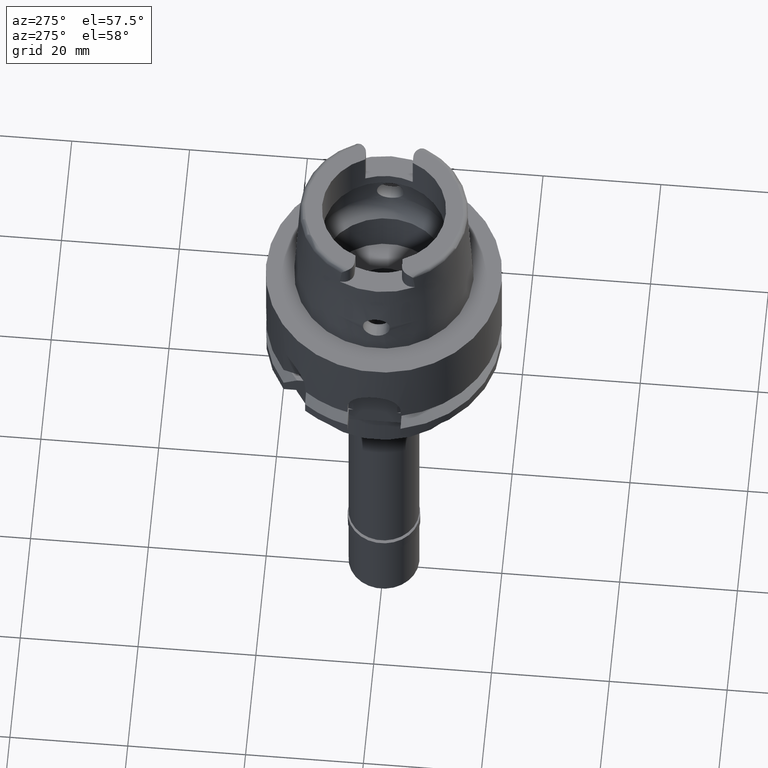
[diagram: clean part render]
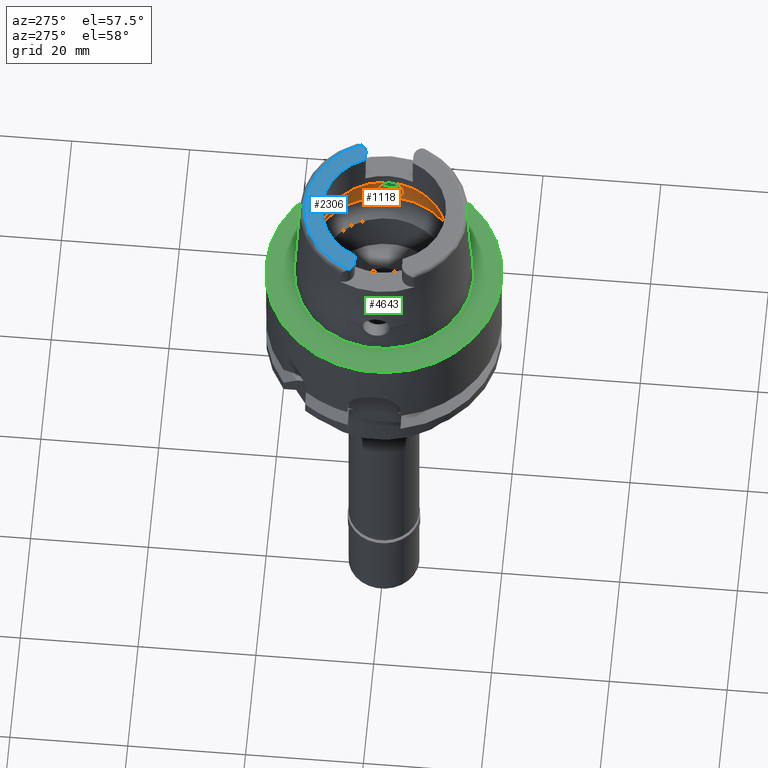
[diagram: same view with three faces highlighted in distinct colors, each labeled with its STEP entity id]
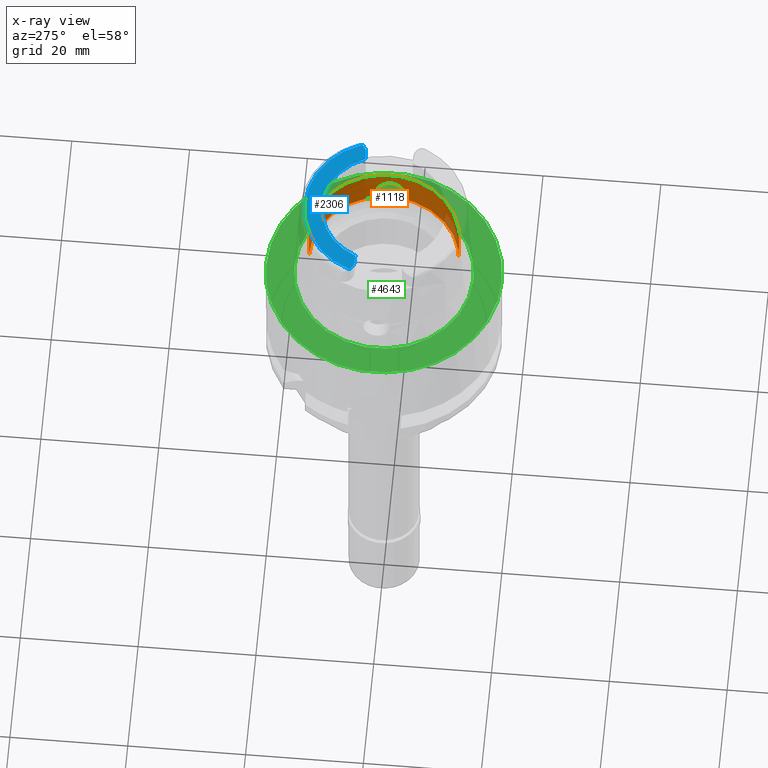
[diagram: x-ray of the same camera — body ghosted, the three highlighted faces saturated]
A machine part, auxiliary view with three faces highlighted in distinct colors.
The next image is the same camera in x-ray (body ghosted, the three faces saturated) — at least one of them is partly hidden behind the body in this view.
Their STEP definitions:

[orange] entity #1118 — the highlighted cylindrical surface (partial cylindrical patch) has radius 12.75 mm, axis along (0, 0, 1).
#5 = CARTESIAN_POINT ( 'NONE',  ( 12.60636243057099826, 1.911099774667251339, 7.280135464876947182 ) ) ;
#10 = CARTESIAN_POINT ( 'NONE',  ( 12.58702699128701319, -2.032416479891860916, 7.077240231043486318 ) ) ;
#29 = CARTESIAN_POINT ( 'NONE',  ( 12.55042238663720511, -2.247098656294975960, 6.491283071267306859 ) ) ;
#52 = CARTESIAN_POINT ( 'NONE',  ( 12.55919850491092937, 2.199950243367534419, 5.325811072686046366 ) ) ;
#88 = ORIENTED_EDGE ( 'NONE', *, *, #2850, .T. ) ;
#109 = DIRECTION ( 'NONE',  ( 0.0000000000000000000, 0.0000000000000000000, -1.000000000000000000 ) ) ;
#135 = VERTEX_POINT ( 'NONE', #3262 ) ;
#185 = CARTESIAN_POINT ( 'NONE',  ( 12.70998420979999999, 1.009356917307999923, 3.933312163512999504 ) ) ;
#328 = CARTESIAN_POINT ( 'NONE',  ( 12.58816338005736135, -2.025711901878164412, 4.910398719099087650 ) ) ;
#339 = FACE_OUTER_BOUND ( 'NONE', #2505, .T. ) ;
#352 = CARTESIAN_POINT ( 'NONE',  ( 12.73600132217647563, 0.5972766562744633578, 8.221334010671576209 ) ) ;
#356 = CARTESIAN_POINT ( 'NONE',  ( 12.56020168767224909, -2.194850923355744499, 5.261647984992203320 ) ) ;
#377 = CARTESIAN_POINT ( 'NONE',  ( 12.68528640673037700, 1.282618448532597322, 7.909478178498619449 ) ) ;
#380 = CARTESIAN_POINT ( 'NONE',  ( 12.54923209321682087, -2.253834383375970418, 6.459530478241907403 ) ) ;
#385 = CARTESIAN_POINT ( 'NONE',  ( 0.0000000000000000000, 0.0000000000000000000, 10.69831216350999981 ) ) ;
#389 = ORIENTED_EDGE ( 'NONE', *, *, #4868, .F. ) ;
#396 = CARTESIAN_POINT ( 'NONE',  ( 0.0000000000000000000, -12.75000000000000000, 10.69831216350999981 ) ) ;
#399 = ORIENTED_EDGE ( 'NONE', *, *, #1480, .F. ) ;
#401 = CARTESIAN_POINT ( 'NONE',  ( 12.56386943541789059, 2.168669277899638814, 6.768886615036272758 ) ) ;
#406 = CARTESIAN_POINT ( 'NONE',  ( 12.54097453154809827, -2.303208788249146544, 6.028890928110980596 ) ) ;
#413 = DIRECTION ( 'NONE',  ( 0.0000000000000000000, -1.000000000000000000, 0.0000000000000000000 ) ) ;
#433 = CARTESIAN_POINT ( 'NONE',  ( 12.69437070898040965, -1.225062091008195297, 7.963484923766866785 ) ) ;
#448 = CARTESIAN_POINT ( 'NONE',  ( 12.59184726953871447, 2.003461483782171815, 4.856741358256978280 ) ) ;
#526 = DIRECTION ( 'NONE',  ( 0.0000000000000000000, -5.251609281303000335E-14, 1.000000000000000000 ) ) ;
#532 = CARTESIAN_POINT ( 'NONE',  ( 12.66015294949480463, 1.515820898752372470, 4.261673246090212253 ) ) ;
#553 = CARTESIAN_POINT ( 'NONE',  ( 0.0000000000000000000, -12.75000000000000000, 3.933312163512999504 ) ) ;
#559 = CARTESIAN_POINT ( 'NONE',  ( 12.57823103700261491, 2.085841112550999910, 5.030833076722798225 ) ) ;
#718 = AXIS2_PLACEMENT_3D ( 'NONE', #770, #3146, #4949 ) ;
#724 = ORIENTED_EDGE ( 'NONE', *, *, #4299, .T. ) ;
#770 = CARTESIAN_POINT ( 'NONE',  ( 0.0000000000000000000, 0.0000000000000000000, 3.933312163512999504 ) ) ;
#787 = CARTESIAN_POINT ( 'NONE',  ( 12.70378435699606534, -1.087426458306568033, 3.971440820316983089 ) ) ;
#804 = CARTESIAN_POINT ( 'NONE',  ( 12.58953901585046786, 2.012316513500156390, 7.120702687050676438 ) ) ;
#830 = CARTESIAN_POINT ( 'NONE',  ( 12.57991246611988068, 2.071229595284187930, 7.008279939507573886 ) ) ;
#834 = CARTESIAN_POINT ( 'NONE',  ( 12.59962450543333645, -1.952469818006789870, 7.215781018203002439 ) ) ;
#858 = CARTESIAN_POINT ( 'NONE',  ( 12.59942648820129740, -1.955713728818002428, 4.787825726633109014 ) ) ;
#881 = CARTESIAN_POINT ( 'NONE',  ( 12.75000000000000000, 0.0000000000000000000, 8.300000000000000711 ) ) ;
#907 = CARTESIAN_POINT ( 'NONE',  ( 12.61330793749120005, 1.877838386366625922, 4.628251263350337652 ) ) ;
#935 = CARTESIAN_POINT ( 'NONE',  ( 12.55030477344285345, 2.252271728801669592, 5.515728184112282051 ) ) ;
#947 = EDGE_CURVE ( 'NONE', #1516, #1806, #3130, .T. ) ;
#960 = CARTESIAN_POINT ( 'NONE',  ( 12.57534449472614035, 2.103279702458743294, 5.069028852144856323 ) ) ;
#1118 = ADVANCED_FACE ( 'NONE', ( #339 ), #1573, .F. ) ;
#1130 = CARTESIAN_POINT ( 'NONE',  ( 12.73372653703014024, 0.6446617667243808025, 8.208236753856079204 ) ) ;
#1159 = CARTESIAN_POINT ( 'NONE',  ( 12.57948705787052113, -2.078988569132839803, 6.986133653149304124 ) ) ;
#1180 = CARTESIAN_POINT ( 'NONE',  ( 12.71367716305245743, 0.9660653841055897306, 8.091255517545636877 ) ) ;
#1209 = CARTESIAN_POINT ( 'NONE',  ( 12.58340089831873776, -2.054613572652159270, 4.966213423609179500 ) ) ;
#1227 = CARTESIAN_POINT ( 'NONE',  ( 12.68081541569779169, 1.326677948901326509, 7.879423259821723313 ) ) ;
#1231 = CARTESIAN_POINT ( 'NONE',  ( 12.59801947208855033, -1.962811666104508967, 7.199035294478858482 ) ) ;
#1253 = VERTEX_POINT ( 'NONE', #3405 ) ;
#1255 = CARTESIAN_POINT ( 'NONE',  ( 0.0000000000000000000, 12.75000000000000000, 3.933312163512999504 ) ) ;
#1259 = CARTESIAN_POINT ( 'NONE',  ( 0.0000000000000000000, 0.0000000000000000000, 3.933312163512999504 ) ) ;
#1260 = CARTESIAN_POINT ( 'NONE',  ( 12.74812863434510568, -0.2515132987693474154, 8.289800669189578031 ) ) ;
#1420 = EDGE_CURVE ( 'NONE', #1516, #135, #3647, .T. ) ;
#1480 = EDGE_CURVE ( 'NONE', #3969, #1806, #4143, .T. ) ;
#1516 = VERTEX_POINT ( 'NONE', #1255 ) ;
#1536 = CARTESIAN_POINT ( 'NONE',  ( 12.53916783255932366, 2.314065119716874008, 6.025908812046091079 ) ) ;
#1573 = CYLINDRICAL_SURFACE ( 'NONE', #3395, 12.75000000000000000 ) ;
#1584 = CARTESIAN_POINT ( 'NONE',  ( 12.74253403849412081, 0.4390584420223789808, 8.258613354921489957 ) ) ;
#1591 = CARTESIAN_POINT ( 'NONE',  ( 12.55615813326794949, -2.214957416249866640, 6.630036887796286749 ) ) ;
#1596 = DIRECTION ( 'NONE',  ( 0.0000000000000000000, 0.0000000000000000000, 1.000000000000000000 ) ) ;
#1614 = CARTESIAN_POINT ( 'NONE',  ( 12.65813641694266778, 1.531156777685081627, 7.721146547177530017 ) ) ;
#1638 = CARTESIAN_POINT ( 'NONE',  ( 12.55638338859512437, 2.213117935082882237, 6.627721170360049818 ) ) ;
#1663 = CARTESIAN_POINT ( 'NONE',  ( 12.58617148012858244, -2.037833863294299164, 4.933304345457270479 ) ) ;
#1806 = VERTEX_POINT ( 'NONE', #185 ) ;
#1976 = CARTESIAN_POINT ( 'NONE',  ( 12.54402077332321674, -2.284018059241180953, 6.277600662870564285 ) ) ;
#1981 = AXIS2_PLACEMENT_3D ( 'NONE', #385, #1596, #413 ) ;
#2021 = CARTESIAN_POINT ( 'NONE',  ( 12.67530334046668727, 1.378182914143908588, 7.841523302660337258 ) ) ;
#2048 = CARTESIAN_POINT ( 'NONE',  ( 12.55878956895940135, 2.198924400071871066, 6.675136837011934610 ) ) ;
#2052 = CARTESIAN_POINT ( 'NONE',  ( 12.54723233953515837, -2.265269517014294465, 6.399364123835371565 ) ) ;
#2073 = CARTESIAN_POINT ( 'NONE',  ( 12.55199982596028363, 2.238260598803833101, 6.529546900918250074 ) ) ;
#2077 = CARTESIAN_POINT ( 'NONE',  ( 12.73482575700469432, -0.6316513280907940509, 8.215304727260464901 ) ) ;
#2126 = ORIENTED_EDGE ( 'NONE', *, *, #1420, .F. ) ;
#2154 = CARTESIAN_POINT ( 'NONE',  ( 12.69522972828973373, 1.182716132410610799, 4.023157977688128106 ) ) ;
#2178 = CARTESIAN_POINT ( 'NONE',  ( 12.70998420979999999, 1.009356917307999923, 3.933312163512999504 ) ) ;
#2231 = AXIS2_PLACEMENT_3D ( 'NONE', #1259, #109, #5004 ) ;
#2375 = CARTESIAN_POINT ( 'NONE',  ( 12.67124636712422614, 1.414962467479650599, 7.813275407124525174 ) ) ;
#2398 = CARTESIAN_POINT ( 'NONE',  ( 12.75000000000000000, 0.0000000000000000000, 8.300000000000000711 ) ) ;
#2404 = CARTESIAN_POINT ( 'NONE',  ( 12.62890528315579708, -1.757226531718690810, 4.506275131687824675 ) ) ;
#2413 = DIRECTION ( 'NONE',  ( 0.0000000000000000000, 0.0000000000000000000, 1.000000000000000000 ) ) ;
#2423 = CARTESIAN_POINT ( 'NONE',  ( 12.72943215096866432, 0.7233523335073037686, 8.183307124778135488 ) ) ;
#2448 = CARTESIAN_POINT ( 'NONE',  ( 12.57960940228538860, -2.077507023069628644, 5.013099602973248636 ) ) ;
#2472 = CARTESIAN_POINT ( 'NONE',  ( 12.58000779606272346, -2.075100360946417144, 5.008049236829145379 ) ) ;
#2494 = CARTESIAN_POINT ( 'NONE',  ( 12.59457361601038627, -1.986215229125470216, 4.839005724993833191 ) ) ;
#2505 = EDGE_LOOP ( 'NONE', ( #3067, #88, #724, #2126, #5294, #399, #389 ) ) ;
#2572 = LINE ( 'NONE', #553, #4294 ) ;
#2748 = VERTEX_POINT ( 'NONE', #396 ) ;
#2767 = CARTESIAN_POINT ( 'NONE',  ( 12.55275205443873077, 2.234003779629072817, 6.547269772249926234 ) ) ;
#2815 = CARTESIAN_POINT ( 'NONE',  ( 12.69917513065302295, 1.136862842747370150, 8.000425171879321340 ) ) ;
#2842 = CARTESIAN_POINT ( 'NONE',  ( 12.61501034001938315, 1.855326400372076412, 7.359710669683595441 ) ) ;
#2850 = EDGE_CURVE ( 'NONE', #5084, #2748, #2572, .T. ) ;
#2868 = CARTESIAN_POINT ( 'NONE',  ( 12.64665748888192631, 1.625825921010800368, 7.632016111831092076 ) ) ;
#2872 = CARTESIAN_POINT ( 'NONE',  ( 12.69521948336852724, -1.182818527430704592, 4.023203260921719426 ) ) ;
#3067 = ORIENTED_EDGE ( 'NONE', *, *, #3565, .T. ) ;
#3130 = CIRCLE ( 'NONE', #718, 12.75000000000000000 ) ;
#3146 = DIRECTION ( 'NONE',  ( 0.0000000000000000000, 0.0000000000000000000, -1.000000000000000000 ) ) ;
#3157 = CARTESIAN_POINT ( 'NONE',  ( 0.0000000000000000000, -12.75000000000000000, 3.933312163512999504 ) ) ;
#3187 = CARTESIAN_POINT ( 'NONE',  ( 12.72852806969255646, 0.7390578915329861776, 8.178040870245604665 ) ) ;
#3212 = CARTESIAN_POINT ( 'NONE',  ( 12.64549669274209798, -1.628236312368419814, 7.644657010981332768 ) ) ;
#3220 = CARTESIAN_POINT ( 'NONE',  ( 0.0000000000000000000, 0.0000000000000000000, -91.30000000000001137 ) ) ;
#3235 = CARTESIAN_POINT ( 'NONE',  ( 12.73076639994871329, 0.6997771273725305052, 8.191070603365801617 ) ) ;
#3261 = CIRCLE ( 'NONE', #2231, 12.75000000000000533 ) ;
#3262 = CARTESIAN_POINT ( 'NONE',  ( 0.0000000000000000000, 12.75000000000000000, 10.69831216350999981 ) ) ;
#3263 = CARTESIAN_POINT ( 'NONE',  ( 12.62940705811261743, 1.755576678188613293, 7.487328866013482020 ) ) ;
#3286 = CARTESIAN_POINT ( 'NONE',  ( 0.0000000000000000000, 12.75000000000000000, 3.933312163512999504 ) ) ;
#3291 = CARTESIAN_POINT ( 'NONE',  ( 12.59096772822184285, -2.007797041498490476, 7.122901825877660187 ) ) ;
#3312 = CARTESIAN_POINT ( 'NONE',  ( 12.57147286633382777, 2.126618588010936506, 5.122814965555522626 ) ) ;
#3374 = CARTESIAN_POINT ( 'NONE',  ( 12.56261235622284467, 2.179687248988821047, 5.262854025005392344 ) ) ;
#3395 = AXIS2_PLACEMENT_3D ( 'NONE', #3220, #2413, #4853 ) ;
#3405 = CARTESIAN_POINT ( 'NONE',  ( 12.70998420979999999, -1.009356917307999923, 3.933312163512999504 ) ) ;
#3565 = EDGE_CURVE ( 'NONE', #1253, #5084, #3261, .T. ) ;
#3624 = CARTESIAN_POINT ( 'NONE',  ( 12.72154148772897031, 0.8565869270497231680, 8.137260400853065789 ) ) ;
#3647 = LINE ( 'NONE', #3286, #4851 ) ;
#3652 = CARTESIAN_POINT ( 'NONE',  ( 12.67335969446623878, -1.397334261659478383, 4.168541024850289212 ) ) ;
#3671 = DIRECTION ( 'NONE',  ( 0.0000000000000000000, 5.251609281303000335E-14, 1.000000000000000000 ) ) ;
#3677 = CARTESIAN_POINT ( 'NONE',  ( 12.70998420979999999, -1.009356917307999923, 3.933312163512999504 ) ) ;
#3703 = CARTESIAN_POINT ( 'NONE',  ( 12.57491582286375476, -2.106479167418662701, 6.925689672275913367 ) ) ;
#3725 = CARTESIAN_POINT ( 'NONE',  ( 12.74064317172553373, -0.5045097878957092163, 8.247646751159161127 ) ) ;
#3747 = CARTESIAN_POINT ( 'NONE',  ( 12.70378379236573707, 1.087433568242307524, 3.971444292763421480 ) ) ;
#3969 = VERTEX_POINT ( 'NONE', #4618 ) ;
#4020 = CARTESIAN_POINT ( 'NONE',  ( 12.74020092552352956, 0.5024167164751011105, 8.245402905358664825 ) ) ;
#4054 = CARTESIAN_POINT ( 'NONE',  ( 12.58206992443463967, -2.062652461841420592, 4.982305945021087368 ) ) ;
#4073 = CARTESIAN_POINT ( 'NONE',  ( 12.67287761129054324, 1.400252862217288730, 7.824658436067148948 ) ) ;
#4078 = CARTESIAN_POINT ( 'NONE',  ( 12.54634502571595256, -2.270405184818898636, 6.369067002709488889 ) ) ;
#4100 = CARTESIAN_POINT ( 'NONE',  ( 12.56761268736346615, 2.146008056740897008, 6.829942491141276051 ) ) ;
#4106 = CARTESIAN_POINT ( 'NONE',  ( 12.57951492486164469, -2.078077630795372333, 5.014296662808308547 ) ) ;
#4126 = CARTESIAN_POINT ( 'NONE',  ( 12.55417783752829486, 2.225848536602950123, 6.579547567605950498 ) ) ;
#4133 = CARTESIAN_POINT ( 'NONE',  ( 12.54838961059286007, -2.263761012650414184, 5.519277340851751923 ) ) ;
#4143 = B_SPLINE_CURVE_WITH_KNOTS ( 'NONE', 3,
 ( #2398, #5271, #4919, #1584, #4020, #352, #1130, #3235, #2423, #3187, #5251, #3624, #1180, #2815, #4478, #377, #1227, #2021, #4073, #2375, #5295, #1614, #2868, #3263, #4524, #2842, #4502, #5, #4897, #804, #830, #4100, #401, #2048, #1638, #4126, #2767, #2073, #5226, #1536, #4818, #935, #52, #3374, #4151, #3312, #960, #4262, #559, #5058, #4601, #448, #907, #532, #5000, #2154, #3747, #2178 ),
 .UNSPECIFIED., .F., .F.,
 ( 4, 2, 2, 1, 1, 2, 2, 2, 2, 1, 1, 2, 2, 2, 2, 2, 2, 2, 2, 1, 2, 2, 2, 2, 2, 1, 1, 1, 2, 2, 2, 2, 4 ),
 ( 0.0000000000000000000, 0.06249999999999925060, 0.09374999999999877875, 0.1093749999999986122, 0.1171874999999983763, 0.1210937499999981265, 0.1249999999999978906, 0.1874999999999997224, 0.2187500000000004718, 0.2343750000000008327, 0.2421875000000011935, 0.2460937500000014433, 0.2500000000000016653, 0.3125000000000067724, 0.3437500000000095479, 0.3593750000000110467, 0.3750000000000126010, 0.4375000000000186517, 0.4687500000000215383, 0.4843750000000229261, 0.4921875000000238143, 0.5000000000000246470, 0.6250000000000384137, 0.6875000000000451861, 0.7187500000000486278, 0.7343750000000505151, 0.7421875000000512923, 0.7460937500000517364, 0.7480468750000518474, 0.7500000000000519584, 0.8750000000000259792, 0.9375000000000131006, 1.000000000000000000 ),
 .UNSPECIFIED. ) ;
#4151 = CARTESIAN_POINT ( 'NONE',  ( 12.56840704442453216, 2.145019904273154143, 5.169340753837179392 ) ) ;
#4154 = CARTESIAN_POINT ( 'NONE',  ( 12.74999999999999645, -0.1249141140674887990, 8.300000000000000711 ) ) ;
#4262 = CARTESIAN_POINT ( 'NONE',  ( 12.57735401796348818, 2.091142786926584840, 5.042270712699787438 ) ) ;
#4294 = VECTOR ( 'NONE', #526, 1000.000000000000000 ) ;
#4299 = EDGE_CURVE ( 'NONE', #2748, #135, #4311, .T. ) ;
#4311 = CIRCLE ( 'NONE', #1981, 12.75000000000000000 ) ;
#4315 = B_SPLINE_CURVE_WITH_KNOTS ( 'NONE', 3,
 ( #3677, #787, #2872, #3652, #5300, #2404, #5254, #858, #2494, #328, #1663, #1209, #4054, #4506, #2472, #2448, #4106, #356, #4133, #5276, #406, #4460, #1976, #4078, #2052, #380, #29, #1591, #4875, #3703, #1159, #10, #3291, #4922, #1231, #834, #4946, #3212, #433, #4845, #2077, #3725, #1260, #4154, #881 ),
 .UNSPECIFIED., .F., .F.,
 ( 4, 2, 2, 2, 2, 2, 1, 1, 2, 2, 2, 2, 2, 2, 2, 2, 2, 1, 2, 2, 2, 2, 2, 4 ),
 ( 0.0000000000000000000, 0.06250000000000191513, 0.1250000000000038303, 0.1875000000000057454, 0.2187500000000065503, 0.2343750000000069666, 0.2421875000000073830, 0.2460937500000075495, 0.2480468750000074107, 0.2500000000000072720, 0.3750000000000052180, 0.4375000000000041633, 0.4687500000000037192, 0.4843750000000034417, 0.5000000000000032196, 0.5625000000000027756, 0.5937500000000026645, 0.6093750000000025535, 0.6171875000000024425, 0.6250000000000023315, 0.7500000000000012212, 0.8750000000000005551, 0.9375000000000003331, 1.000000000000000000 ),
 .UNSPECIFIED. ) ;
#4460 = CARTESIAN_POINT ( 'NONE',  ( 12.54292152381457370, -2.290700287668736568, 6.215855377679537774 ) ) ;
#4478 = CARTESIAN_POINT ( 'NONE',  ( 12.69389019562242993, 1.194866738636923165, 7.966509972416470298 ) ) ;
#4502 = CARTESIAN_POINT ( 'NONE',  ( 12.61212859349987525, 1.874292955729468968, 7.333444814483084606 ) ) ;
#4506 = CARTESIAN_POINT ( 'NONE',  ( 12.58061217635632367, -2.071450635206692592, 5.000425897660916164 ) ) ;
#4524 = CARTESIAN_POINT ( 'NONE',  ( 12.62365157474314259, 1.796788064726948519, 7.437271470227827308 ) ) ;
#4601 = CARTESIAN_POINT ( 'NONE',  ( 12.57921839010888476, 2.079869861397238395, 5.018089157221090169 ) ) ;
#4618 = CARTESIAN_POINT ( 'NONE',  ( 12.75000000000000000, 0.0000000000000000000, 8.300000000000000711 ) ) ;
#4818 = CARTESIAN_POINT ( 'NONE',  ( 12.54617271575433080, 2.275841949918835816, 5.643719801002620606 ) ) ;
#4845 = CARTESIAN_POINT ( 'NONE',  ( 12.71364834903116225, -0.9964013844006908149, 8.088879608969868684 ) ) ;
#4851 = VECTOR ( 'NONE', #3671, 1000.000000000000000 ) ;
#4853 = DIRECTION ( 'NONE',  ( 0.0000000000000000000, 1.000000000000000000, 0.0000000000000000000 ) ) ;
#4868 = EDGE_CURVE ( 'NONE', #1253, #3969, #4315, .T. ) ;
#4875 = CARTESIAN_POINT ( 'NONE',  ( 12.56256827965612821, -2.179294879570409016, 6.746523433246831125 ) ) ;
#4897 = CARTESIAN_POINT ( 'NONE',  ( 12.60335557454656907, 1.929672412002566784, 7.251929070998208715 ) ) ;
#4919 = CARTESIAN_POINT ( 'NONE',  ( 12.74813350962353375, 0.2493941777180584407, 8.290028155784026964 ) ) ;
#4922 = CARTESIAN_POINT ( 'NONE',  ( 12.59516462049655594, -1.981089676945445577, 7.168588450183449368 ) ) ;
#4946 = CARTESIAN_POINT ( 'NONE',  ( 12.62232296256208564, -1.805414351497369285, 7.448281353417247175 ) ) ;
#4949 = DIRECTION ( 'NONE',  ( 0.0000000000000000000, 1.000000000000000000, 0.0000000000000000000 ) ) ;
#5000 = CARTESIAN_POINT ( 'NONE',  ( 12.67341430685427461, 1.396850065730370849, 4.168188949451535841 ) ) ;
#5004 = DIRECTION ( 'NONE',  ( 0.9968615066513395462, -0.07916524841634305087, 0.0000000000000000000 ) ) ;
#5058 = CARTESIAN_POINT ( 'NONE',  ( 12.57881922631636940, 2.082284414900940739, 5.023214820217241083 ) ) ;
#5084 = VERTEX_POINT ( 'NONE', #3157 ) ;
#5226 = CARTESIAN_POINT ( 'NONE',  ( 12.54168629692342840, 2.296015285311971077, 6.278035047514277878 ) ) ;
#5251 = CARTESIAN_POINT ( 'NONE',  ( 12.72798090471693833, 0.7483809726665697770, 8.174849724191457057 ) ) ;
#5254 = CARTESIAN_POINT ( 'NONE',  ( 12.61572324944066636, -1.848904166240547875, 4.625851530416967172 ) ) ;
#5271 = CARTESIAN_POINT ( 'NONE',  ( 12.75000000000000000, 0.1235211372854140705, 8.300000000000004263 ) ) ;
#5276 = CARTESIAN_POINT ( 'NONE',  ( 12.54147754504978529, -2.301479683167833024, 5.901926979656279215 ) ) ;
#5294 = ORIENTED_EDGE ( 'NONE', *, *, #947, .T. ) ;
#5295 = CARTESIAN_POINT ( 'NONE',  ( 12.67031008394346969, 1.423321839499519070, 7.806715393615386134 ) ) ;
#5300 = CARTESIAN_POINT ( 'NONE',  ( 12.65990440303049347, -1.517817692120075446, 4.263541385613347501 ) ) ;

[blue] entity #2306 — the highlighted planar face has unit normal (0, 0, 1).
#58 = ORIENTED_EDGE ( 'NONE', *, *, #2040, .F. ) ;
#94 = CARTESIAN_POINT ( 'NONE',  ( 0.0000000000000000000, 0.0000000000000000000, 20.00000000000000000 ) ) ;
#108 = DIRECTION ( 'NONE',  ( 1.000000000000000000, 0.0000000000000000000, 0.0000000000000000000 ) ) ;
#112 = ORIENTED_EDGE ( 'NONE', *, *, #1308, .F. ) ;
#155 = LINE ( 'NONE', #581, #4375 ) ;
#296 = DIRECTION ( 'NONE',  ( 0.8199385816669358951, -0.5724515021327251096, 0.0000000000000000000 ) ) ;
#315 = DIRECTION ( 'NONE',  ( 1.000000000000000000, 1.705288205493999919E-14, 0.0000000000000000000 ) ) ;
#345 = CARTESIAN_POINT ( 'NONE',  ( -11.00000000000000000, 4.025000000000000355, 20.00000000000000000 ) ) ;
#436 = EDGE_CURVE ( 'NONE', #1841, #3977, #4811, .T. ) ;
#456 = CARTESIAN_POINT ( 'NONE',  ( 11.00000000000000000, 4.025000000000000355, 20.00000000000000000 ) ) ;
#477 = DIRECTION ( 'NONE',  ( 0.0000000000000000000, 0.0000000000000000000, 1.000000000000000000 ) ) ;
#514 = DIRECTION ( 'NONE',  ( 0.0000000000000000000, 0.0000000000000000000, 1.000000000000000000 ) ) ;
#581 = CARTESIAN_POINT ( 'NONE',  ( 9.697905701747998819, 4.025000000000000355, 20.00000000000000000 ) ) ;
#585 = CIRCLE ( 'NONE', #1883, 1.879999999999999671 ) ;
#605 = AXIS2_PLACEMENT_3D ( 'NONE', #1191, #2059, #2477 ) ;
#653 = VECTOR ( 'NONE', #315, 1000.000000000000000 ) ;
#851 = ORIENTED_EDGE ( 'NONE', *, *, #436, .T. ) ;
#879 = PLANE ( 'NONE',  #2542 ) ;
#1079 = DIRECTION ( 'NONE',  ( 0.0000000000000000000, -1.000000000000000000, 0.0000000000000000000 ) ) ;
#1128 = VERTEX_POINT ( 'NONE', #456 ) ;
#1179 = CIRCLE ( 'NONE', #5307, 10.50000000000000000 ) ;
#1191 = CARTESIAN_POINT ( 'NONE',  ( 0.0000000000000000000, 0.0000000000000000000, 20.00000000000000000 ) ) ;
#1308 = EDGE_CURVE ( 'NONE', #2421, #1128, #2101, .T. ) ;
#1355 = CARTESIAN_POINT ( 'NONE',  ( -9.697905701747998819, 4.025000000000000355, 20.00000000000000000 ) ) ;
#1484 = CARTESIAN_POINT ( 'NONE',  ( -11.00000000000000000, 5.904999999999999361, 20.00000000000000000 ) ) ;
#1504 = ORIENTED_EDGE ( 'NONE', *, *, #3028, .F. ) ;
#1518 = AXIS2_PLACEMENT_3D ( 'NONE', #94, #3331, #4513 ) ;
#1841 = VERTEX_POINT ( 'NONE', #2034 ) ;
#1883 = AXIS2_PLACEMENT_3D ( 'NONE', #1484, #4762, #1079 ) ;
#1937 = CARTESIAN_POINT ( 'NONE',  ( 9.697905701747998819, 4.025000000000000355, 20.00000000000000000 ) ) ;
#2034 = CARTESIAN_POINT ( 'NONE',  ( -11.00000000000000000, 4.025000000000000355, 20.00000000000000000 ) ) ;
#2040 = EDGE_CURVE ( 'NONE', #3813, #2211, #3842, .T. ) ;
#2059 = DIRECTION ( 'NONE',  ( 0.0000000000000000000, 0.0000000000000000000, -1.000000000000000000 ) ) ;
#2101 = CIRCLE ( 'NONE', #3309, 1.880000000000000115 ) ;
#2124 = FACE_OUTER_BOUND ( 'NONE', #4041, .T. ) ;
#2211 = VERTEX_POINT ( 'NONE', #3870 ) ;
#2306 = ADVANCED_FACE ( 'NONE', ( #2124 ), #879, .T. ) ;
#2393 = ORIENTED_EDGE ( 'NONE', *, *, #4362, .F. ) ;
#2421 = VERTEX_POINT ( 'NONE', #4207 ) ;
#2477 = DIRECTION ( 'NONE',  ( -0.9332173178785413414, 0.3593124512337161347, 0.0000000000000000000 ) ) ;
#2542 = AXIS2_PLACEMENT_3D ( 'NONE', #4659, #477, #108 ) ;
#2636 = DIRECTION ( 'NONE',  ( 0.0000000000000000000, 0.0000000000000000000, -1.000000000000000000 ) ) ;
#2700 = ORIENTED_EDGE ( 'NONE', *, *, #2867, .T. ) ;
#2867 = EDGE_CURVE ( 'NONE', #3813, #1128, #155, .T. ) ;
#3028 = EDGE_CURVE ( 'NONE', #2211, #3977, #1179, .T. ) ;
#3258 = ORIENTED_EDGE ( 'NONE', *, *, #3299, .F. ) ;
#3299 = EDGE_CURVE ( 'NONE', #1841, #4486, #585, .T. ) ;
#3309 = AXIS2_PLACEMENT_3D ( 'NONE', #4300, #2636, #296 ) ;
#3331 = DIRECTION ( 'NONE',  ( 0.0000000000000000000, 0.0000000000000000000, 1.000000000000000000 ) ) ;
#3449 = DIRECTION ( 'NONE',  ( 1.000000000000000000, -1.637076677275000359E-14, 0.0000000000000000000 ) ) ;
#3731 = CARTESIAN_POINT ( 'NONE',  ( -12.54148453352999937, 4.828791175990000184, 20.00000000000000000 ) ) ;
#3813 = VERTEX_POINT ( 'NONE', #1937 ) ;
#3842 = CIRCLE ( 'NONE', #1518, 10.49999999999999822 ) ;
#3870 = CARTESIAN_POINT ( 'NONE',  ( 0.0000000000000000000, 10.50000000000000000, 20.00000000000000000 ) ) ;
#3977 = VERTEX_POINT ( 'NONE', #1355 ) ;
#4041 = EDGE_LOOP ( 'NONE', ( #1504, #58, #2700, #112, #2393, #3258, #851 ) ) ;
#4050 = CIRCLE ( 'NONE', #605, 13.43897535253999465 ) ;
#4207 = CARTESIAN_POINT ( 'NONE',  ( 12.54148453352999937, 4.828791175991000273, 20.00000000000000000 ) ) ;
#4300 = CARTESIAN_POINT ( 'NONE',  ( 11.00000000000000000, 5.904999999999999361, 20.00000000000000000 ) ) ;
#4362 = EDGE_CURVE ( 'NONE', #4486, #2421, #4050, .T. ) ;
#4375 = VECTOR ( 'NONE', #3449, 1000.000000000000000 ) ;
#4486 = VERTEX_POINT ( 'NONE', #3731 ) ;
#4513 = DIRECTION ( 'NONE',  ( 0.9236100668331782559, 0.3833333333332911153, 0.0000000000000000000 ) ) ;
#4659 = CARTESIAN_POINT ( 'NONE',  ( 0.0000000000000000000, 0.0000000000000000000, 20.00000000000000000 ) ) ;
#4665 = DIRECTION ( 'NONE',  ( 0.0000000000000000000, 1.000000000000000000, 0.0000000000000000000 ) ) ;
#4762 = DIRECTION ( 'NONE',  ( 0.0000000000000000000, 0.0000000000000000000, -1.000000000000000000 ) ) ;
#4811 = LINE ( 'NONE', #345, #653 ) ;
#5097 = CARTESIAN_POINT ( 'NONE',  ( 0.0000000000000000000, 0.0000000000000000000, 20.00000000000000000 ) ) ;
#5307 = AXIS2_PLACEMENT_3D ( 'NONE', #5097, #514, #4665 ) ;

[green] entity #4643 — the highlighted planar face has unit normal (0, 0, 1).
#28 = EDGE_CURVE ( 'NONE', #5022, #1922, #133, .T. ) ;
#133 = CIRCLE ( 'NONE', #1766, 20.00000000000000000 ) ;
#250 = CARTESIAN_POINT ( 'NONE',  ( 0.0000000000000000000, 0.0000000000000000000, 1.705302565823999875E-13 ) ) ;
#252 = CARTESIAN_POINT ( 'NONE',  ( 0.0000000000000000000, 0.0000000000000000000, 0.0000000000000000000 ) ) ;
#657 = CIRCLE ( 'NONE', #1864, 15.20000663301000010 ) ;
#726 = DIRECTION ( 'NONE',  ( 0.0000000000000000000, -1.000000000000000000, 0.0000000000000000000 ) ) ;
#1059 = DIRECTION ( 'NONE',  ( 0.0000000000000000000, 1.000000000000000000, 0.0000000000000000000 ) ) ;
#1282 = AXIS2_PLACEMENT_3D ( 'NONE', #252, #4822, #1871 ) ;
#1531 = AXIS2_PLACEMENT_3D ( 'NONE', #250, #1897, #4718 ) ;
#1716 = ORIENTED_EDGE ( 'NONE', *, *, #3228, .F. ) ;
#1766 = AXIS2_PLACEMENT_3D ( 'NONE', #5270, #2765, #726 ) ;
#1864 = AXIS2_PLACEMENT_3D ( 'NONE', #1930, #3582, #2389 ) ;
#1871 = DIRECTION ( 'NONE',  ( 1.000000000000000000, 0.0000000000000000000, 0.0000000000000000000 ) ) ;
#1890 = EDGE_CURVE ( 'NONE', #5277, #3396, #657, .T. ) ;
#1897 = DIRECTION ( 'NONE',  ( 0.0000000000000000000, 0.0000000000000000000, -1.000000000000000000 ) ) ;
#1922 = VERTEX_POINT ( 'NONE', #4883 ) ;
#1930 = CARTESIAN_POINT ( 'NONE',  ( 0.0000000000000000000, 0.0000000000000000000, 7.958078640512999903E-13 ) ) ;
#1955 = AXIS2_PLACEMENT_3D ( 'NONE', #3086, #4726, #1059 ) ;
#2204 = EDGE_CURVE ( 'NONE', #3396, #5277, #3245, .T. ) ;
#2389 = DIRECTION ( 'NONE',  ( 0.0000000000000000000, -1.000000000000000000, 0.0000000000000000000 ) ) ;
#2625 = CARTESIAN_POINT ( 'NONE',  ( 0.0000000000000000000, -15.20000663301000010, 4.547473508865000658E-13 ) ) ;
#2635 = ORIENTED_EDGE ( 'NONE', *, *, #1890, .F. ) ;
#2765 = DIRECTION ( 'NONE',  ( 0.0000000000000000000, 0.0000000000000000000, -1.000000000000000000 ) ) ;
#2771 = FACE_BOUND ( 'NONE', #5302, .T. ) ;
#2796 = EDGE_LOOP ( 'NONE', ( #1716, #3095 ) ) ;
#3086 = CARTESIAN_POINT ( 'NONE',  ( 0.0000000000000000000, 0.0000000000000000000, 7.958078640512999903E-13 ) ) ;
#3095 = ORIENTED_EDGE ( 'NONE', *, *, #28, .F. ) ;
#3228 = EDGE_CURVE ( 'NONE', #1922, #5022, #3770, .T. ) ;
#3245 = CIRCLE ( 'NONE', #1955, 15.20000663301000010 ) ;
#3396 = VERTEX_POINT ( 'NONE', #4023 ) ;
#3582 = DIRECTION ( 'NONE',  ( 0.0000000000000000000, 0.0000000000000000000, 1.000000000000000000 ) ) ;
#3770 = CIRCLE ( 'NONE', #1531, 20.00000000000000000 ) ;
#4023 = CARTESIAN_POINT ( 'NONE',  ( 0.0000000000000000000, 15.20000663301000010, 7.958078640512999903E-13 ) ) ;
#4070 = ORIENTED_EDGE ( 'NONE', *, *, #2204, .F. ) ;
#4434 = FACE_OUTER_BOUND ( 'NONE', #2796, .T. ) ;
#4643 = ADVANCED_FACE ( 'NONE', ( #4434, #2771 ), #4765, .T. ) ;
#4718 = DIRECTION ( 'NONE',  ( 0.0000000000000000000, 1.000000000000000000, 0.0000000000000000000 ) ) ;
#4726 = DIRECTION ( 'NONE',  ( 0.0000000000000000000, 0.0000000000000000000, 1.000000000000000000 ) ) ;
#4765 = PLANE ( 'NONE',  #1282 ) ;
#4822 = DIRECTION ( 'NONE',  ( 0.0000000000000000000, 0.0000000000000000000, 1.000000000000000000 ) ) ;
#4883 = CARTESIAN_POINT ( 'NONE',  ( 0.0000000000000000000, 20.00000000000000000, 9.473903143467999112E-14 ) ) ;
#5022 = VERTEX_POINT ( 'NONE', #5203 ) ;
#5203 = CARTESIAN_POINT ( 'NONE',  ( 0.0000000000000000000, -20.00000000000000000, 1.705302565823999875E-13 ) ) ;
#5270 = CARTESIAN_POINT ( 'NONE',  ( 0.0000000000000000000, 0.0000000000000000000, 1.705302565823999875E-13 ) ) ;
#5277 = VERTEX_POINT ( 'NONE', #2625 ) ;
#5302 = EDGE_LOOP ( 'NONE', ( #4070, #2635 ) ) ;